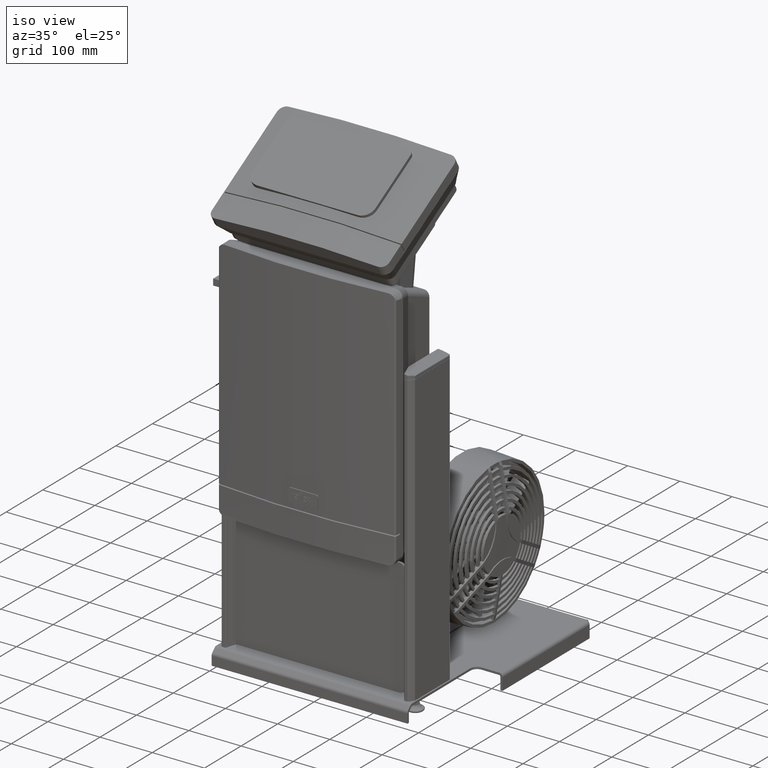
[diagram: clean part render]
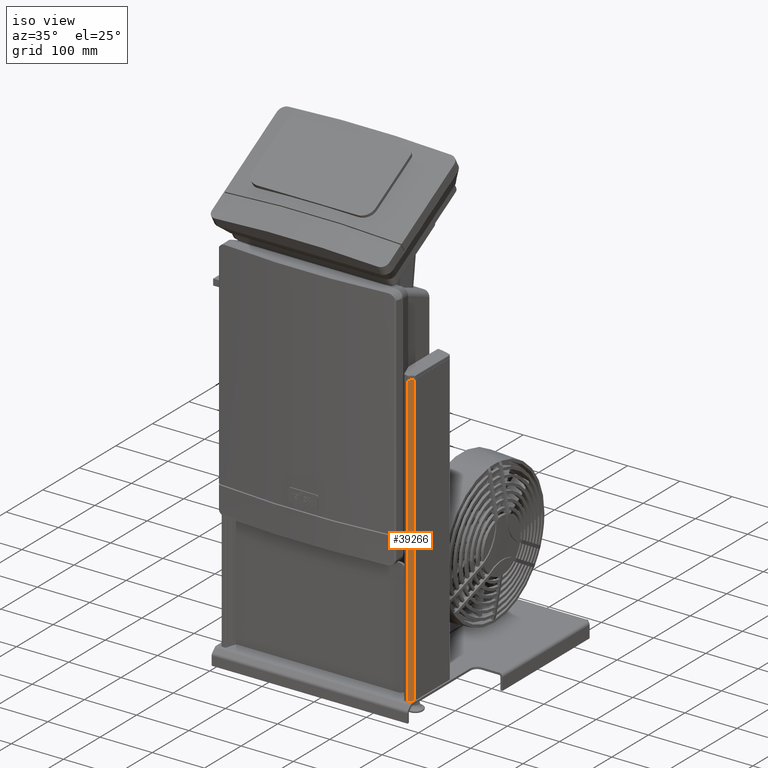
[diagram: same view with one face highlighted and labeled with its STEP entity id]
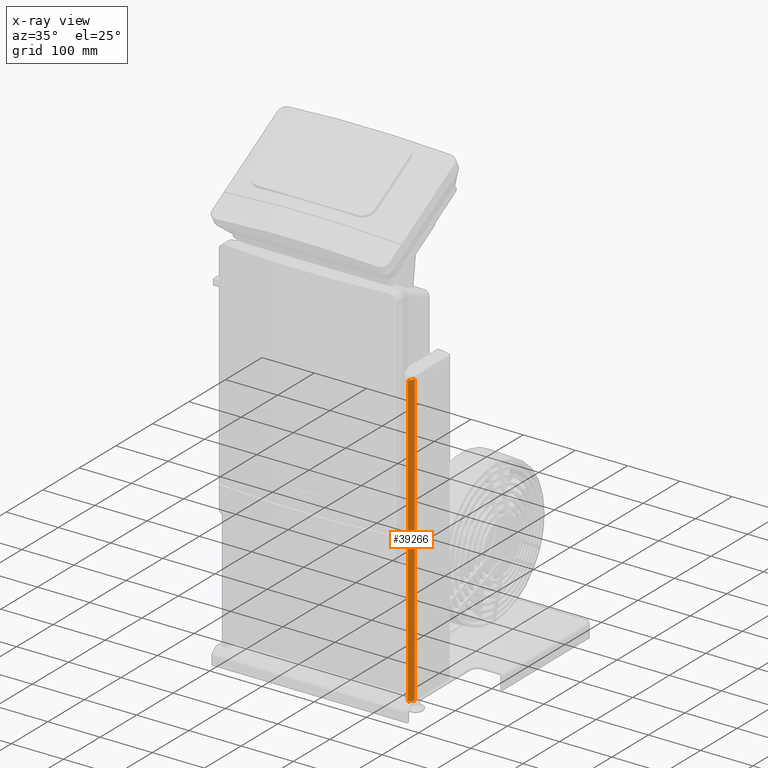
[diagram: x-ray of the same camera — body ghosted, the highlighted face saturated]
A machine part, iso view. The second image highlights one B-rep face of the part: STEP entity #39266.
The next image is the same camera in x-ray: the body ghosted, the highlighted face saturated — about 0% of this face is hidden behind the body in this view.
In plain terms, the highlighted face is a freeform B-spline surface patch.
Its self-contained STEP definition (entity closure, byte-faithful):
#39176=CARTESIAN_POINT('',(184.74742296139584,11.344643925853475,560.00000048299978));
#39177=VERTEX_POINT('',#39176);
#39178=CARTESIAN_POINT('',(184.74742296139584,11.344643925853475,4.000000416780893));
#39179=VERTEX_POINT('',#39178);
#39180=CARTESIAN_POINT('',(184.74742296139584,11.344643925853475,560.00000048299978));
#39181=DIRECTION('',(0.0,0.0,-1.0));
#39182=VECTOR('',#39181,556.00000006621894);
#39183=LINE('',#39180,#39182);
#39184=EDGE_CURVE('',#39177,#39179,#39183,.T.);
#39213=CARTESIAN_POINT('',(100.80555702151645,65.392825519790861,560.00000048299978));
#39214=CARTESIAN_POINT('',(100.80555702151645,65.392825519790861,4.000000416780836));
#39215=CARTESIAN_POINT('',(71.382741947345266,24.966374363263313,560.00000048299978));
#39216=CARTESIAN_POINT('',(71.382741947345266,24.966374363263313,4.000000416780836));
#39217=CARTESIAN_POINT('',(111.80919310387281,-4.45644071090787,560.00000048299978));
#39218=CARTESIAN_POINT('',(111.80919310387281,-4.45644071090787,4.000000416780836));
#39219=CARTESIAN_POINT('',(152.23564426040036,-33.879255785079039,560.00000048299978));
#39220=CARTESIAN_POINT('',(152.23564426040036,-33.879255785079039,4.000000416780836));
#39221=CARTESIAN_POINT('',(181.65845933457155,6.547195371448495,560.00000048299978));
#39222=CARTESIAN_POINT('',(181.65845933457155,6.547195371448495,4.000000416780836));
#39223=CARTESIAN_POINT('',(211.08127440874273,46.973646527976037,560.00000048299978));
#39224=CARTESIAN_POINT('',(211.08127440874273,46.973646527976037,4.000000416780836));
#39225=CARTESIAN_POINT('',(170.65482325221518,76.396461602147227,560.00000048299978));
#39226=CARTESIAN_POINT('',(170.65482325221518,76.396461602147227,4.000000416780836));
#39227=CARTESIAN_POINT('',(130.22837209568763,105.81927667631841,560.00000048299978));
#39228=CARTESIAN_POINT('',(130.22837209568763,105.81927667631841,4.000000416780836));
#39229=CARTESIAN_POINT('',(100.80555702151645,65.392825519790861,560.00000048299978));
#39230=CARTESIAN_POINT('',(100.80555702151645,65.392825519790861,4.000000416780836));
#39238=(BOUNDED_SURFACE()B_SPLINE_SURFACE(1,2,((#39213,#39215,#39217,#39219,#39221,#39223,#39225,#39227,#39229),(#39214,#39216,#39218,#39220,#39222,#39224,#39226,#39228,#39230)),.UNSPECIFIED.,.F.,.T.,.U.)B_SPLINE_SURFACE_WITH_KNOTS((2,2),(3,2,2,2,3),(0.0,11.120000001324417),(0.0,78.539816339744561,157.07963267948912,235.61944901923368,314.15926535897825),.UNSPECIFIED.)GEOMETRIC_REPRESENTATION_ITEM()RATIONAL_B_SPLINE_SURFACE(((1.0,0.707106781186548,1.0,0.707106781186548,1.0,0.707106781186548,1.0,0.707106781186548,1.0),(1.0,0.707106781186548,1.0,0.707106781186548,1.0,0.707106781186548,1.0,0.707106781186548,1.0)))REPRESENTATION_ITEM('')SURFACE());
#39239=CARTESIAN_POINT('',(178.04302674126825,2.13291671199751,560.00000048299978));
#39240=VERTEX_POINT('',#39239);
#39241=CARTESIAN_POINT('',(178.04302674126825,2.13291671199751,4.000000416780893));
#39242=VERTEX_POINT('',#39241);
#39243=CARTESIAN_POINT('',(178.04302674126825,2.13291671199751,560.00000048299978));
#39244=DIRECTION('',(0.0,0.0,-1.0));
#39245=VECTOR('',#39244,556.00000006621894);
#39246=LINE('',#39243,#39245);
#39247=EDGE_CURVE('',#39240,#39242,#39246,.T.);
#39248=ORIENTED_EDGE('',*,*,#39247,.T.);
#39249=CARTESIAN_POINT('',(141.232008178044,35.970010445619678,4.000000416780836));
#39250=DIRECTION('',(0.0,0.0,-1.0));
#39251=DIRECTION('',(0.808529023130554,-0.588456301483426,0.0));
#39252=AXIS2_PLACEMENT_3D('',#39249,#39250,#39251);
#39253=CIRCLE('',#39252,49.999999999999822);
#39254=EDGE_CURVE('',#39179,#39242,#39253,.T.);
#39255=ORIENTED_EDGE('',*,*,#39254,.F.);
#39256=ORIENTED_EDGE('',*,*,#39184,.F.);
#39257=CARTESIAN_POINT('',(141.232008178044,35.970010445619678,560.00000048299978));
#39258=DIRECTION('',(0.0,0.0,-1.0));
#39259=DIRECTION('',(0.808529023130554,-0.588456301483426,0.0));
#39260=AXIS2_PLACEMENT_3D('',#39257,#39258,#39259);
#39261=CIRCLE('',#39260,49.999999999999822);
#39262=EDGE_CURVE('',#39177,#39240,#39261,.T.);
#39263=ORIENTED_EDGE('',*,*,#39262,.T.);
#39264=EDGE_LOOP('',(#39248,#39255,#39256,#39263));
#39265=FACE_OUTER_BOUND('',#39264,.T.);
#39266=ADVANCED_FACE('',(#39265),#39238,.T.);